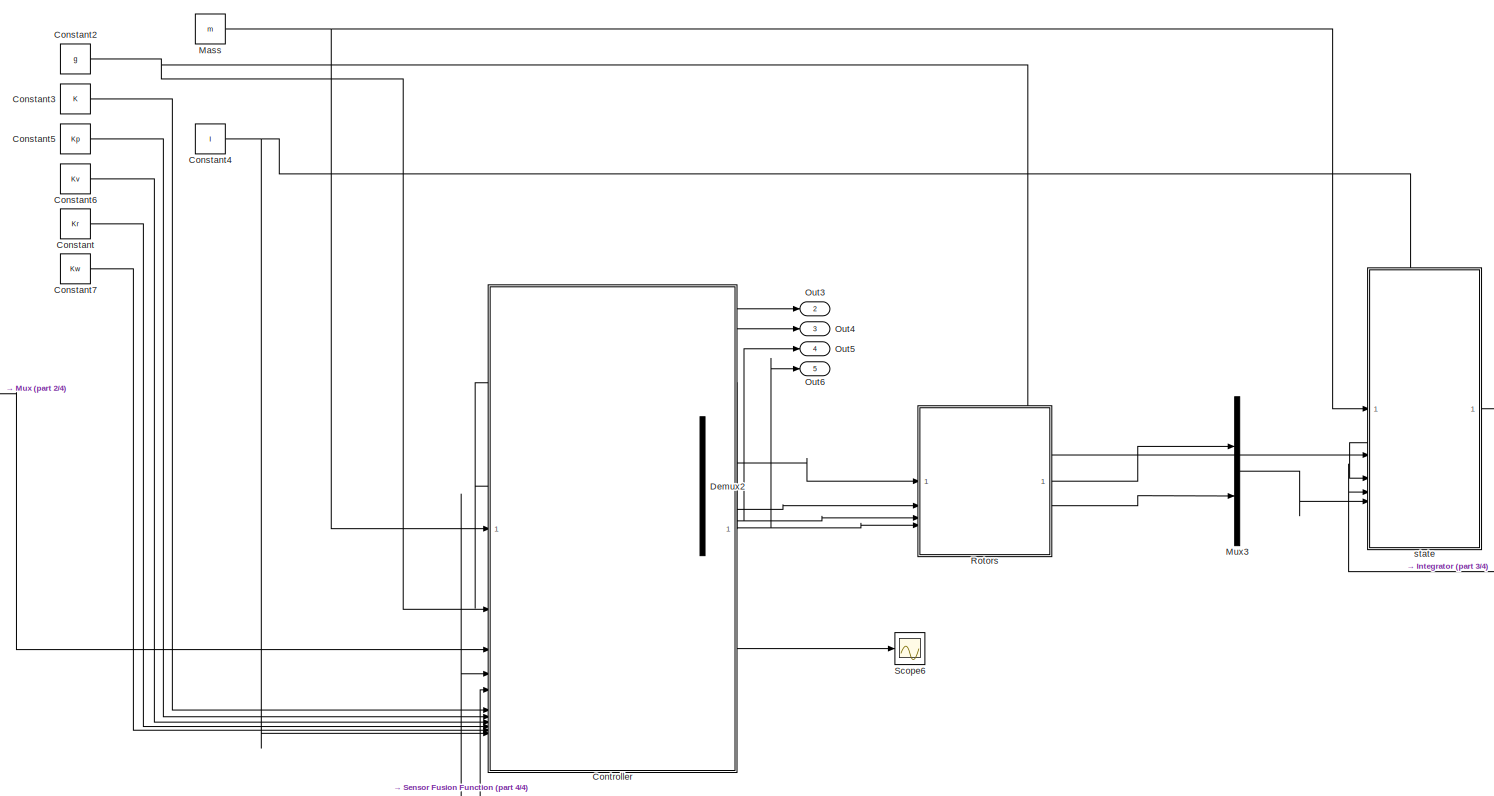
[diagram: root canvas - part 1/4, top center region]
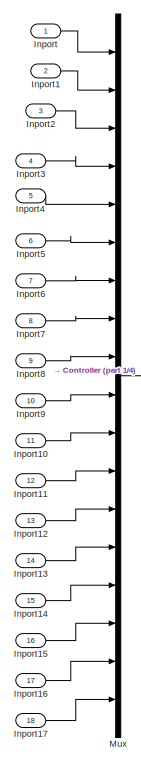
[diagram: root canvas - part 2/4, top left region]
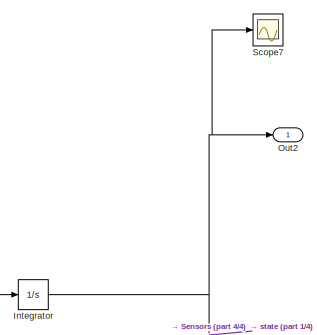
[diagram: root canvas - part 3/4, top right region]
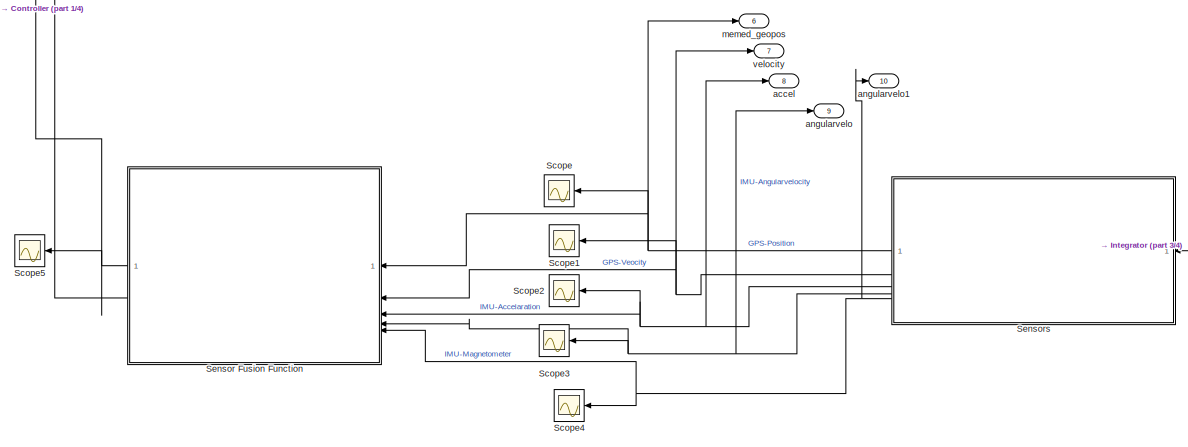
[diagram: root canvas - part 4/4, bottom center region]
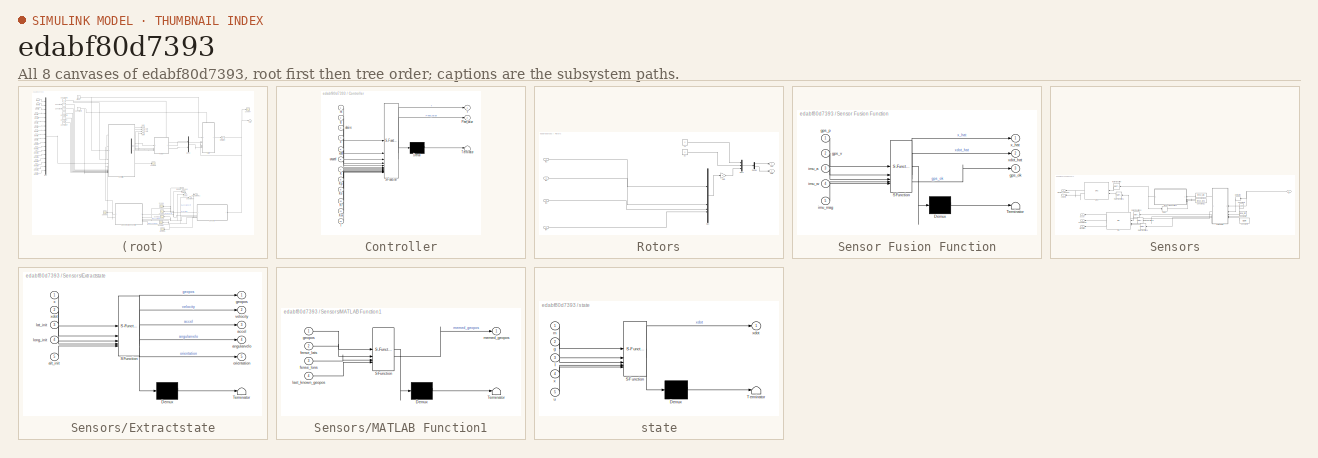
[diagram: thumbnail index - all 8 canvases of the model, root first then tree order]
MODEL slx_edabf80d7393
KIND model
CONFIG AbsTol = auto
CONFIG EnableMultiTasking = off
CONFIG FixedStep = timestep
CONFIG MaxStep = auto
CONFIG MinStep = auto
CONFIG RelTol = 1e-3
CONFIG SampleTimeConstraint = Unconstrained
CONFIG SolverName = FixedStepAuto
CONFIG StartTime = 0.0
CONFIG StopTime = SimulationTime
BLOCK [Constant] Constant
  Value = Kr
BLOCK [Constant] Constant2
  Value = g
BLOCK [Constant] Constant3
  Value = K
BLOCK [Constant] Constant4
  Value = I
BLOCK [Constant] Constant5
  Value = Kp
BLOCK [Constant] Constant6
  Value = Kv
BLOCK [Constant] Constant7
  Value = Kw
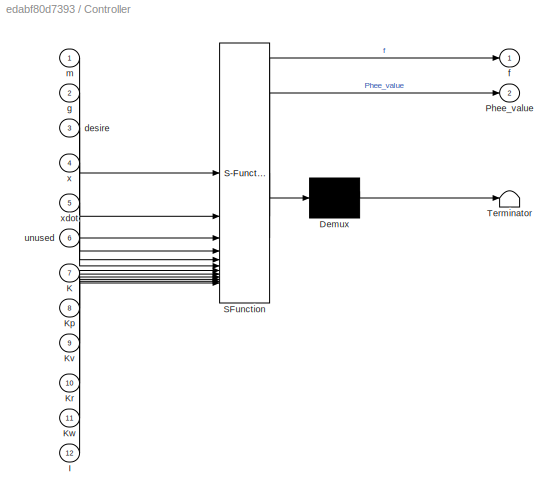
BLOCK [SubSystem] Controller
  ErrorFcn = Stateflow.Translate.translate
  PermitHierarchicalResolution = ExplicitOnly
  SFBlockType = MATLAB Function
  TreatAsAtomicUnit = on
BLOCK [Demux] Controller/ Demux 
  Outputs = 1
BLOCK [S-Function] Controller/ SFunction 
  EnableBusSupport = off
  FunctionName = sf_sfun
  PortCounts = [12 3]
  SFcnIsStateOwnerBlock = off
  SFunctionDeploymentMode = off
  Tag = Stateflow S-Function 2
BLOCK [Terminator] Controller/ Terminator 
BLOCK [Inport] Controller/I
  Port = 12
BLOCK [Inport] Controller/K
  Port = 7
BLOCK [Inport] Controller/Kp
  Port = 8
BLOCK [Inport] Controller/Kr
  Port = 10
BLOCK [Inport] Controller/Kv
  Port = 9
BLOCK [Inport] Controller/Kw
  Port = 11
BLOCK [Outport] Controller/Phee_value
  Port = 2
BLOCK [Inport] Controller/desire
  Port = 3
BLOCK [Outport] Controller/f
BLOCK [Inport] Controller/g
  Port = 2
BLOCK [Inport] Controller/m
BLOCK [Inport] Controller/unused
  Port = 6
BLOCK [Inport] Controller/x
  Port = 4
BLOCK [Inport] Controller/xdot
  Port = 5
BLOCK [Demux] Demux2
BLOCK [Inport] Inport
BLOCK [Inport] Inport1
  Port = 2
BLOCK [Inport] Inport10
  Port = 11
BLOCK [Inport] Inport11
  Port = 12
BLOCK [Inport] Inport12
  Port = 13
BLOCK [Inport] Inport13
  Port = 14
BLOCK [Inport] Inport14
  Port = 15
BLOCK [Inport] Inport15
  Port = 16
BLOCK [Inport] Inport16
  Port = 17
BLOCK [Inport] Inport17
  Port = 18
BLOCK [Inport] Inport2
  Port = 3
BLOCK [Inport] Inport3
  Port = 4
BLOCK [Inport] Inport4
  Port = 5
BLOCK [Inport] Inport5
  Port = 6
BLOCK [Inport] Inport6
  Port = 7
BLOCK [Inport] Inport7
  Port = 8
BLOCK [Inport] Inport8
  Port = 9
BLOCK [Inport] Inport9
  Port = 10
BLOCK [Integrator] Integrator
  InitialCondition = [0;0;0;0;0;0;1;0;0;0;1;0;0;0;1;0;0;0]
BLOCK [Constant] Mass
  Value = m
BLOCK [Mux] Mux
  DisplayOption = bar
  Inputs = 18
BLOCK [Mux] Mux3
  DisplayOption = bar
  Inputs = 2
BLOCK [Outport] Out2
BLOCK [Outport] Out3
  Port = 2
BLOCK [Outport] Out4
  Port = 3
BLOCK [Outport] Out5
  Port = 4
BLOCK [Outport] Out6
  Port = 5
BLOCK [SubSystem] Rotors
BLOCK [Demux] Rotors/Demux
  Outputs = 2
BLOCK [Constant] Rotors/Fx
  Value = 0
BLOCK [Constant] Rotors/Fy
  Value = 0
BLOCK [Gain] Rotors/Gain
  Gain = K
  Multiplication = Matrix(K*u) (u vector)
BLOCK [Inport] Rotors/In1
BLOCK [Inport] Rotors/In2
  Port = 2
BLOCK [Inport] Rotors/In3
  Port = 3
BLOCK [Inport] Rotors/In4
  Port = 4
BLOCK [Mux] Rotors/Mux
  DisplayOption = bar
BLOCK [Mux] Rotors/Mux1
  DisplayOption = bar
  Inputs = 3
BLOCK [Outport] Rotors/Out1
BLOCK [Outport] Rotors/Out2
  Port = 2
BLOCK [Scope] Scope
  ActiveDisplayYMaximum = 418.7762343955248
  ActiveDisplayYMinimum = -392.49114665190103
  Floating = off
  GraphicalSettings = {"Style":{"BackgroundColor":[0.12941176470588237,0.12941176470588237,0.12941176470588237],"AxesColor":[0.07058823529411765,0.07058823529411765,0.07058823529411765],"LabelsColor":[0.8509803921568627,0.8509803921568627,0.8509803921568627],"PreserveColors":false,"Visible":[true,true,true],"LineStyle":["-","-","-"],"LineWidth":[1.5,1.5,1.5],"BarWidth":[0.9,0.9,0.9],"LineColor":["auto","auto","auto"],"...<+2234ch>
  MultipleDisplayCache = [{"MaxYLimMag":1,"MaxYLimReal":418.7762343955248,"MinYLimMag":0,"MinYLimReal":-392.49114665190103,"PlotAsMagnitudePhase":false,"ShowGrid":true,"ShowLegend":false,"Title":"%<SignalLabel>","YLabel":""}]
  NameLocation = top
  NumInputPorts = 1
  ScopeFrameLocation = window
  WasSavedAsWebScope = on
  WindowPosition = [1.000000,1.000000,1280.000000,778.000000,]
BLOCK [Scope] Scope1
  ActiveDisplayYMaximum = 3575.603681327907
  ActiveDisplayYMinimum = -3502.8833679211148
  DataLoggingVariableName = ScopeData2
  Floating = off
  GraphicalSettings = {"AxesScalingProperties":{"AlignXAxis":"Center","AlignYAxis":"Center","AutoScaleXAxisLimits":false,"AxesScaling":"Manual","AxesScalingNumUpdates":10,"ExpandOnly":true,"ScaleAxesLimitsAtStop":false,"XAxisDataRange":100,"YAxisDataRange":80},"DisplayProperties":{"ColorOrder":["auto","auto","auto","auto","auto","auto","auto","auto","auto","auto","auto","auto","auto","auto","auto","auto","auto","auto",...<+2274ch>
  MultipleDisplayCache = [{"MaxYLimMag":2254.7514453926246,"MaxYLimReal":3575.603681327907,"MinYLimMag":0,"MinYLimReal":-3502.8833679211148,"PlotAsMagnitudePhase":false,"ShowGrid":true,"ShowLegend":false,"Title":"%<SignalLabel>","YLabel":""}]
  NameLocation = top
  NumInputPorts = 1
  ScopeFrameLocation = window
  WasSavedAsWebScope = on
  WindowPosition = [1.000000,1.000000,1280.000000,778.000000,]
BLOCK [Scope] Scope2
  ActiveDisplayYMaximum = 1151.8108947334445
  ActiveDisplayYMinimum = -1798.8130288406041
  DataLoggingVariableName = ScopeData3
  Floating = off
  GraphicalSettings = {"AxesScalingProperties":{"AlignXAxis":"Center","AlignYAxis":"Center","AutoScaleXAxisLimits":false,"AxesScaling":"Manual","AxesScalingNumUpdates":10,"ExpandOnly":true,"ScaleAxesLimitsAtStop":false,"XAxisDataRange":100,"YAxisDataRange":80},"DisplayProperties":{"ColorOrder":["auto","auto","auto","auto","auto","auto","auto","auto","auto","auto","auto","auto","auto","auto","auto","auto","auto","auto",...<+2304ch>
  MultipleDisplayCache = [{"MaxYLimMag":642.13917021255963,"MaxYLimReal":1151.8108947334445,"MinYLimMag":0,"MinYLimReal":-1798.8130288406041,"PlotAsMagnitudePhase":false,"ShowGrid":true,"ShowLegend":false,"Title":"%<SignalLabel>","YLabel":""}]
  NameLocation = top
  NumInputPorts = 1
  ScopeFrameLocation = window
  WasSavedAsWebScope = on
  WindowPosition = [1.000000,1.000000,1280.000000,778.000000,]
BLOCK [Scope] Scope3
  ActiveDisplayYMaximum = 117.62406798675227
  ActiveDisplayYMinimum = -57.363961461922528
  DataLoggingVariableName = ScopeData4
  Floating = off
  GraphicalSettings = {"AxesScalingProperties":{"AlignXAxis":"Center","AlignYAxis":"Center","AutoScaleXAxisLimits":false,"AxesScaling":"Manual","AxesScalingNumUpdates":10,"ExpandOnly":true,"ScaleAxesLimitsAtStop":false,"XAxisDataRange":100,"YAxisDataRange":80},"DisplayProperties":{"ColorOrder":["auto","auto","auto","auto","auto","auto","auto","auto","auto","auto","auto","auto","auto","auto","auto","auto","auto","auto",...<+2352ch>
  MultipleDisplayCache = [{"MaxYLimMag":114.79129635476488,"MaxYLimReal":117.62406798675227,"MinYLimMag":0,"MinYLimReal":-57.363961461922528,"PlotAsMagnitudePhase":false,"ShowGrid":true,"ShowLegend":false,"Title":"%<SignalLabel>","YLabel":""}]
  NameLocation = top
  NumInputPorts = 1
  ScopeFrameLocation = window
  WasSavedAsWebScope = on
  WindowPosition = [1.000000,1.000000,1280.000000,778.000000,]
BLOCK [Scope] Scope4
  ActiveDisplayYMaximum = 42.415838093401533
  ActiveDisplayYMinimum = -40.166345129221554
  DataLoggingVariableName = ScopeData5
  Floating = off
  GraphicalSettings = {"Style":{"BackgroundColor":[0.12941176470588237,0.12941176470588237,0.12941176470588237],"AxesColor":[0.07058823529411765,0.07058823529411765,0.07058823529411765],"LabelsColor":[0.8509803921568627,0.8509803921568627,0.8509803921568627],"PreserveColors":false,"Visible":[true,true,true],"LineStyle":["-","-","-"],"LineWidth":[1.5,1.5,1.5],"BarWidth":[0.9,0.9,0.9],"LineColor":["auto","auto","auto"],"...<+2290ch>
  MultipleDisplayCache = [{"MaxYLimMag":41.753940596053681,"MaxYLimReal":42.415838093401533,"MinYLimMag":0,"MinYLimReal":-40.166345129221554,"PlotAsMagnitudePhase":false,"ShowGrid":true,"ShowLegend":false,"Title":"%<SignalLabel>","YLabel":""}]
  NameLocation = top
  NumInputPorts = 1
  ScopeFrameLocation = window
  WasSavedAsWebScope = on
  WindowPosition = [1.000000,1.000000,1280.000000,778.000000,]
BLOCK [Scope] Scope5
  ActiveDisplayYMaximum = 40462.213145959
  ActiveDisplayYMinimum = -73414.952706483455
  DataLoggingVariableName = ScopeData6
  Floating = off
  GraphicalSettings = {"AxesScalingProperties":{"AlignXAxis":"Center","AlignYAxis":"Center","AutoScaleXAxisLimits":false,"AxesScaling":"Manual","AxesScalingNumUpdates":10,"ExpandOnly":true,"ScaleAxesLimitsAtStop":false,"XAxisDataRange":100,"YAxisDataRange":80},"DisplayProperties":{"ColorOrder":["auto","auto","auto","auto","auto","auto","auto","auto","auto","auto","auto","auto","auto","auto","auto","auto","auto","auto",...<+5451ch>
  LayoutDimensionsString = [1,3]
  MultipleDisplayCache = [{"MaxYLimMag":61666.897139673223,"MaxYLimReal":40462.213145959,"MinYLimMag":0,"MinYLimReal":-73414.952706483455,"PlotAsMagnitudePhase":false,"ShowGrid":true,"ShowLegend":false,"Title":"%<SignalLabel>","YLabel":""},{"MaxYLimMag":7641.65407802699,"MaxYLimReal":6599.9294081251464,"MinYLimMag":0,"MinYLimReal":-2514.5992909728693,"PlotAsMagnitudePhase":false,"ShowGrid":true,"ShowLegend":false,"Title":...<+245ch>
  NumInputPorts = 1
  ScopeFrameLocation = window
  Visible = on
  WasSavedAsWebScope = on
  WindowPosition = [642.000000,2.000000,638.000000,770.000000,]
BLOCK [Scope] Scope6
  ActiveDisplayYMaximum = 2.21622
  ActiveDisplayYMinimum = -0.10349
  DataLoggingVariableName = ScopeData1
  Floating = off
  GraphicalSettings = {"GraphicalSettings":{"LegacySettings":true,"Style":{"AxesScalingProperties":{"ScaleAxesLimitsAtStop":false},"Style":{"AxesColor":"[0 0 0]","ChannelNames":[""],"ColorOrder":"[1 0.909803921568627 0.392156862745098;0.149019607843137 0.549019607843137 0.866666666666667;0.96078431372549 0.466666666666667 0.16078431372549;0.286274509803922 0.858823529411765 0.250980392156863;0.752941176470588 0.3607843...<+521ch>
  MultipleDisplayCache = [{"MaxYLimMag":2.21622,"MaxYLimReal":2.21622,"MinYLimMag":0,"MinYLimReal":-0.10349,"PlotAsMagnitudePhase":false,"ShowGrid":true,"ShowLegend":false,"Title":"%<SignalLabel>","YLabel":""}]
  NumInputPorts = 1
  WasSavedAsWebScope = on
BLOCK [Scope] Scope7
  ActiveDisplayYMaximum = 18920.015749277885
  ActiveDisplayYMinimum = -13370.290018848573
  DataLoggingVariableName = ScopeData7
  Floating = off
  GraphicalSettings = {"AxesScalingProperties":{"AlignXAxis":"Center","AlignYAxis":"Center","AutoScaleXAxisLimits":false,"AxesScaling":"Manual","AxesScalingNumUpdates":10,"ExpandOnly":true,"ScaleAxesLimitsAtStop":false,"XAxisDataRange":100,"YAxisDataRange":80},"DisplayProperties":{"ColorOrder":["auto","auto","auto","auto","auto","auto","auto","auto","auto","auto","auto","auto","auto","auto","auto","auto","auto","auto",...<+4109ch>
  MultipleDisplayCache = [{"MaxYLimMag":9533.775232826225,"MaxYLimReal":18920.015749277885,"MinYLimMag":0,"MinYLimReal":-13370.290018848573,"PlotAsMagnitudePhase":false,"ShowGrid":true,"ShowLegend":false,"Title":"%<SignalLabel>","YLabel":""}]
  NumInputPorts = 1
  ScopeFrameLocation = window
  Visible = on
  WasSavedAsWebScope = on
  WindowPosition = [2.000000,2.000000,638.000000,770.000000,]
BLOCK [SubSystem] Sensor Fusion Function
  ErrorFcn = Stateflow.Translate.translate
  PermitHierarchicalResolution = ExplicitOnly
  SFBlockType = MATLAB Function
  TreatAsAtomicUnit = on
BLOCK [Demux] Sensor Fusion Function/ Demux 
  Outputs = 1
BLOCK [S-Function] Sensor Fusion Function/ SFunction 
  EnableBusSupport = off
  FunctionName = sf_sfun
  PortCounts = [5 4]
  SFcnIsStateOwnerBlock = off
  SFunctionDeploymentMode = off
  Tag = Stateflow S-Function 5
BLOCK [Terminator] Sensor Fusion Function/ Terminator 
BLOCK [Outport] Sensor Fusion Function/gps_ok
  Port = 3
BLOCK [Inport] Sensor Fusion Function/gps_p
BLOCK [Inport] Sensor Fusion Function/gps_v
  Port = 2
BLOCK [Inport] Sensor Fusion Function/imu_a
  Port = 3
BLOCK [Inport] Sensor Fusion Function/imu_mag
  Port = 5
BLOCK [Inport] Sensor Fusion Function/imu_w
  Port = 4
BLOCK [Outport] Sensor Fusion Function/x_hat
BLOCK [Outport] Sensor Fusion Function/xdot_hat
  Port = 2
BLOCK [SubSystem] Sensors
  NameLocation = top
BLOCK [Constant] Sensors/Constant1
  NameLocation = top
  Value = lat_init
BLOCK [Constant] Sensors/Constant10
  NameLocation = top
  Value = fense_lats
BLOCK [Constant] Sensors/Constant11
  NameLocation = top
  Value = fense_lons
BLOCK [Constant] Sensors/Constant8
  NameLocation = top
  Value = long_init
BLOCK [Constant] Sensors/Constant9
  NameLocation = top
  Value = alt_init
BLOCK [Delay] Sensors/Delay
  DelayLength = 1
  InitialCondition = 0
  InputPortMap = u0
BLOCK [Derivative] Sensors/Derivative
  NameLocation = top
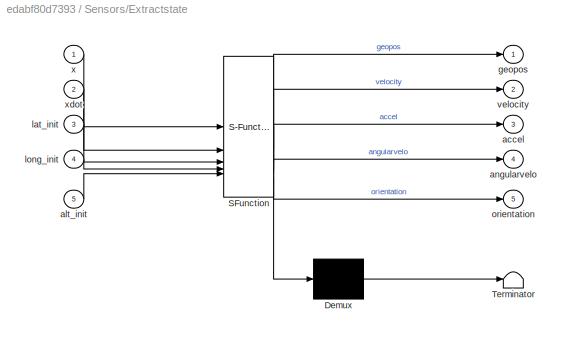
BLOCK [SubSystem] Sensors/Extractstate
  ErrorFcn = Stateflow.Translate.translate
  NameLocation = top
  PermitHierarchicalResolution = ExplicitOnly
  SFBlockType = MATLAB Function
  TreatAsAtomicUnit = on
BLOCK [Demux] Sensors/Extractstate/ Demux 
  Outputs = 1
BLOCK [S-Function] Sensors/Extractstate/ SFunction 
  EnableBusSupport = off
  FunctionName = sf_sfun
  PortCounts = [5 6]
  SFcnIsStateOwnerBlock = off
  SFunctionDeploymentMode = off
  Tag = Stateflow S-Function 3
BLOCK [Terminator] Sensors/Extractstate/ Terminator 
BLOCK [Outport] Sensors/Extractstate/accel
  Port = 3
BLOCK [Inport] Sensors/Extractstate/alt_init
  Port = 5
BLOCK [Outport] Sensors/Extractstate/angularvelo
  Port = 4
BLOCK [Outport] Sensors/Extractstate/geopos
BLOCK [Inport] Sensors/Extractstate/lat_init
  Port = 3
BLOCK [Inport] Sensors/Extractstate/long_init
  Port = 4
BLOCK [Outport] Sensors/Extractstate/orientation
  Port = 5
BLOCK [Outport] Sensors/Extractstate/velocity
  Port = 2
BLOCK [Inport] Sensors/Extractstate/x
BLOCK [Inport] Sensors/Extractstate/xdot
  Port = 2
BLOCK [Reference] Sensors/GPS  REF=sensorgpslib/GPS
  LibrarySourceBlock = mspsensorlib/GPS
  NameLocation = top
  SourceBlock = sensorgpslib/GPS
  SourceType = fusion.internal.simulink.gpsSensor
BLOCK [Reference] Sensors/IMU  REF=mspsensorlib/IMU
  NameLocation = top
  SourceBlock = mspsensorlib/IMU
  SourceType = fusion.simulink.imuSensor
BLOCK [SubSystem] Sensors/MATLAB Function1
  ErrorFcn = Stateflow.Translate.translate
  NameLocation = top
  PermitHierarchicalResolution = ExplicitOnly
  SFBlockType = MATLAB Function
  TreatAsAtomicUnit = on
BLOCK [Demux] Sensors/MATLAB Function1/ Demux 
  Outputs = 1
BLOCK [S-Function] Sensors/MATLAB Function1/ SFunction 
  EnableBusSupport = off
  FunctionName = sf_sfun
  PortCounts = [4 2]
  SFcnIsStateOwnerBlock = off
  SFunctionDeploymentMode = off
  Tag = Stateflow S-Function 4
BLOCK [Terminator] Sensors/MATLAB Function1/ Terminator 
BLOCK [Inport] Sensors/MATLAB Function1/fense_lats
  Port = 2
BLOCK [Inport] Sensors/MATLAB Function1/fense_lons
  Port = 3
BLOCK [Inport] Sensors/MATLAB Function1/geopos
BLOCK [Inport] Sensors/MATLAB Function1/last_known_geopos
  Port = 4
BLOCK [Outport] Sensors/MATLAB Function1/memed_geopos
BLOCK [RateTransition] Sensors/Rate Transition
  NameLocation = top
BLOCK [RateTransition] Sensors/Rate Transition1
  NameLocation = top
BLOCK [RateTransition] Sensors/Rate Transition2
  NameLocation = top
BLOCK [RateTransition] Sensors/Rate Transition3
  NameLocation = top
BLOCK [RateTransition] Sensors/Rate Transition4
  NameLocation = top
BLOCK [Outport] Sensors/accel
  Port = 3
BLOCK [Outport] Sensors/angularvelo
  Port = 4
BLOCK [Outport] Sensors/memed_geopos
BLOCK [Outport] Sensors/orientation
  Port = 5
BLOCK [Outport] Sensors/velocity
  Port = 2
BLOCK [Inport] Sensors/x
  NameLocation = top
BLOCK [Outport] accel
  Port = 8
BLOCK [Outport] angularvelo
  Port = 9
BLOCK [Outport] angularvelo1
  Port = 10
BLOCK [Outport] memed_geopos
  Port = 6
BLOCK [SubSystem] state
  ErrorFcn = Stateflow.Translate.translate
  PermitHierarchicalResolution = ExplicitOnly
  SFBlockType = MATLAB Function
  TreatAsAtomicUnit = on
BLOCK [Demux] state/ Demux 
  Outputs = 1
BLOCK [S-Function] state/ SFunction 
  EnableBusSupport = off
  FunctionName = sf_sfun
  PortCounts = [5 2]
  SFcnIsStateOwnerBlock = off
  SFunctionDeploymentMode = off
  Tag = Stateflow S-Function 1
BLOCK [Terminator] state/ Terminator 
BLOCK [Inport] state/I
  Port = 3
BLOCK [Inport] state/g
  Port = 2
BLOCK [Inport] state/m
BLOCK [Inport] state/u
  Port = 5
BLOCK [Inport] state/x
  Port = 4
BLOCK [Outport] state/xdot
BLOCK [Outport] velocity
  Port = 7
NET Constant2:1 -> Controller:2, state:2
LINE Constant3:1 -> Controller:7
NET Constant4:1 -> Controller:12, state:3
LINE Constant5:1 -> Controller:8
LINE Constant6:1 -> Controller:9
LINE Constant7:1 -> Controller:11
LINE Constant:1 -> Controller:10
LINE Controller:1 -> Demux2:1
LINE Controller:2 -> Scope6:1
NET Demux2:1 -> Out3:1, Rotors:1
NET Demux2:2 -> Out4:1, Rotors:2
NET Demux2:3 -> Out5:1, Rotors:3
NET Demux2:4 -> Out6:1, Rotors:4
LINE Inport10:1 -> Mux:11
LINE Inport11:1 -> Mux:12
LINE Inport12:1 -> Mux:13
LINE Inport13:1 -> Mux:14
LINE Inport14:1 -> Mux:15
LINE Inport15:1 -> Mux:16
LINE Inport16:1 -> Mux:17
LINE Inport17:1 -> Mux:18
LINE Inport1:1 -> Mux:2
LINE Inport2:1 -> Mux:3
LINE Inport3:1 -> Mux:4
LINE Inport4:1 -> Mux:5
LINE Inport5:1 -> Mux:6
LINE Inport6:1 -> Mux:7
LINE Inport7:1 -> Mux:8
LINE Inport8:1 -> Mux:9
LINE Inport9:1 -> Mux:10
LINE Inport:1 -> Mux:1
NET Integrator:1 -> Out2:1, Scope7:1, Sensors:1, state:4
NET Mass:1 -> Controller:1, state:1
LINE Mux3:1 -> state:5
LINE Mux:1 -> Controller:3
LINE Rotors/Demux:1 -> Rotors/Out1:1
LINE Rotors/Demux:2 -> Rotors/Out2:1
LINE Rotors/Fx:1 -> Rotors/Mux1:1
LINE Rotors/Fy:1 -> Rotors/Mux1:2
LINE Rotors/Gain:1 -> Rotors/Mux1:3
LINE Rotors/In1:1 -> Rotors/Mux:1
LINE Rotors/In2:1 -> Rotors/Mux:2
LINE Rotors/In3:1 -> Rotors/Mux:3
LINE Rotors/In4:1 -> Rotors/Mux:4
LINE Rotors/Mux1:1 -> Rotors/Demux:1
LINE Rotors/Mux:1 -> Rotors/Gain:1
LINE Rotors:1 -> Mux3:1
LINE Rotors:2 -> Mux3:2
NET Sensor Fusion Function:1 -> Controller:4, Scope5:1
LINE Sensor Fusion Function:2 -> Controller:5
LINE Sensors/Constant10:1 -> Sensors/MATLAB Function1:2
LINE Sensors/Constant11:1 -> Sensors/MATLAB Function1:3
LINE Sensors/Constant1:1 -> Sensors/Extractstate:3
LINE Sensors/Constant8:1 -> Sensors/Extractstate:4
LINE Sensors/Constant9:1 -> Sensors/Extractstate:5
LINE Sensors/Delay:1 -> Sensors/MATLAB Function1:4
LINE Sensors/Derivative:1 -> Sensors/Extractstate:2
LINE Sensors/Extractstate:1 -> Sensors/MATLAB Function1:1
LINE Sensors/Extractstate:2 -> Sensors/Rate Transition1:1
LINE Sensors/Extractstate:3 -> Sensors/Rate Transition2:1
LINE Sensors/Extractstate:4 -> Sensors/Rate Transition3:1
LINE Sensors/Extractstate:5 -> Sensors/Rate Transition4:1
LINE Sensors/GPS:1 -> Sensors/memed_geopos:1
LINE Sensors/GPS:2 -> Sensors/velocity:1
LINE Sensors/IMU:1 -> Sensors/accel:1
LINE Sensors/IMU:2 -> Sensors/angularvelo:1
LINE Sensors/IMU:3 -> Sensors/orientation:1
NET Sensors/MATLAB Function1:1 -> Sensors/Delay:1, Sensors/Rate Transition:1
LINE Sensors/Rate Transition1:1 -> Sensors/GPS:2
LINE Sensors/Rate Transition2:1 -> Sensors/IMU:1
LINE Sensors/Rate Transition3:1 -> Sensors/IMU:2
LINE Sensors/Rate Transition4:1 -> Sensors/IMU:3
LINE Sensors/Rate Transition:1 -> Sensors/GPS:1
NET Sensors/x:1 -> Sensors/Derivative:1, Sensors/Extractstate:1
NET Sensors:1 -> Scope:1, Sensor Fusion Function:1, memed_geopos:1
NET Sensors:2 -> Scope1:1, Sensor Fusion Function:2, velocity:1
NET Sensors:3 -> Scope2:1, Sensor Fusion Function:3, accel:1
NET Sensors:4 -> Scope3:1, Sensor Fusion Function:4, angularvelo:1
NET Sensors:5 -> Scope4:1, Sensor Fusion Function:5, angularvelo1:1
LINE state:1 -> Integrator:1
note: NET lines group one-source signal fan-out (src -> all destinations, sorted); 1:1 wires keep LINE
CHART state states=1 transitions=1
  STATE_LABEL 'eML_blk_kernel()'
  STATE_LABEL 'SCRIPT:\nfunction xdot = fcn(m,g,I,x,u)\n\n% extract the x-vextor\np = x(1:3,1);\nv = x(4:6,1);\nR = reshape(x(7:15,1),3,3);\nomega = x(16:18,1);\n\n%control signal\nf = u(3,1);\nM = u(4:6,1);\n\ne3 = [0;0;1];\n\n\nxdot = zeros(size(x));\n\nxdot(1:3,1) = v;\nxdot(4:6,1) = g*e3 - 1/m*f*R*e3;\n\nRdot = R*hatmap(omega);\nxdot(7:15,1) = Rdot(:);\n\nxdot(16:18,1) = I\\(M - cross(omega,I*omega));\n\n\n\n\nend'
CHART Controller states=1 transitions=1
  STATE_LABEL 'eML_blk_kernel()'
  STATE_LABEL 'SCRIPT:\nfunction [f, Phee_value] = fcn(m, g, desire, x, xdot, ~, K, Kp, Kv, Kr, Kw, I)\n%#codegen\n\n% ---- preallocate outputs (fix dims) ----\nf = zeros(4,1);\nPhee_value = 0;\n\ne3 = [0;0;1];\n\n\n% -------- desired --------\nrd    = desire(1:3);\nvd    = desire(4:6);\nad    = desire(7:9);\njd    = desire(10:12);    \npsid  = desire(16);\ndpsid = desire(17);\n\n% -------- actual --------\np = x(1:3);\nv = x(4:6); ...<+1641ch>'
CHART Sensors/Extractstate states=1 transitions=1
  STATE_LABEL 'eML_blk_kernel()'
  STATE_LABEL 'SCRIPT:\nfunction [geopos, velocity,accel, angularvelo, orientation] = Extractstate(x,xdot,lat_init,long_init,alt_init)\n\nposition = x(1:3)\';\nvelocity = x(4:6)\';\naccel = xdot(4:6)\';\nR = x(7:15);\norientation = reshape(R,3,3);\nangularvelo = x(16:18)\';\n\n\ngeopos = ned2lla(position, [lat_init long_init alt_init], "ellipsoid");\n\nend\n'
CHART Sensors/MATLAB Function1 states=1 transitions=1
  STATE_LABEL 'eML_blk_kernel()'
  STATE_LABEL 'SCRIPT:\nfunction memed_geopos  = is_jammed(geopos, fense_lats, fense_lons, last_known_geopos)\n    \n    memed_geopos = geopos;\n\n    if fense_lats ~= 0\n        if (geopos(1) > min(fense_lats)) && (geopos(1) < max(fense_lats)) && (geopos(2) > min(fense_lons)) && (geopos(2) < max(fense_lons))\n            memed_geopos = [14.30613815134626, 101.18904132968885, 30];\n        end\n    end\nend'
CHART Sensor Fusion Function states=1 transitions=1
  STATE_LABEL 'eML_blk_kernel()'
  STATE_LABEL 'SCRIPT:\nfunction [x_hat, xdot_hat, gps_ok] = fcn(gps_p, gps_v, imu_a, imu_w, imu_mag)\n%#codegen\n% Discrete Sensor Fusion (Complementary + anti-spoof) for quadrotor (NED)\n% Outputs:\n%   x_hat(18x1)  = [p(1:3); v(4:6); vec(Rb2n)(7:15); omega(16:18)]\n%   xdot_hat(18x1)= [pdot; vdot; vec(Rdot)(7:15); omegadot]\n%   gps_ok       = true when GPS trusted (not spoof/hold)\n\n% ---------- enforce column 3x1 -...<+3608ch>'
CHART  states=0 transitions=0
CHART  states=0 transitions=0
CHART  states=0 transitions=0
CHART  states=0 transitions=0
CHART  states=0 transitions=0
